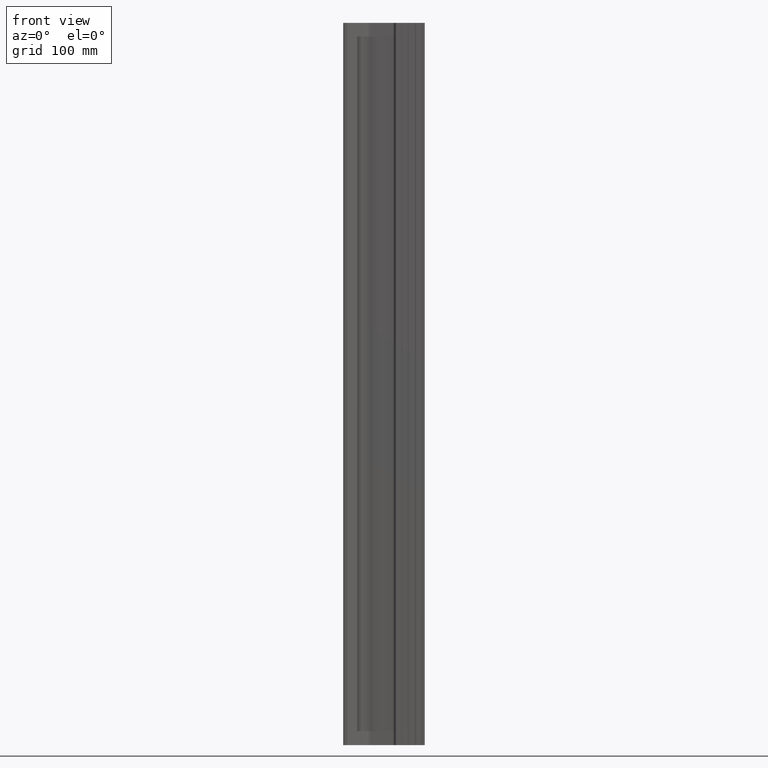
[diagram: clean part render]
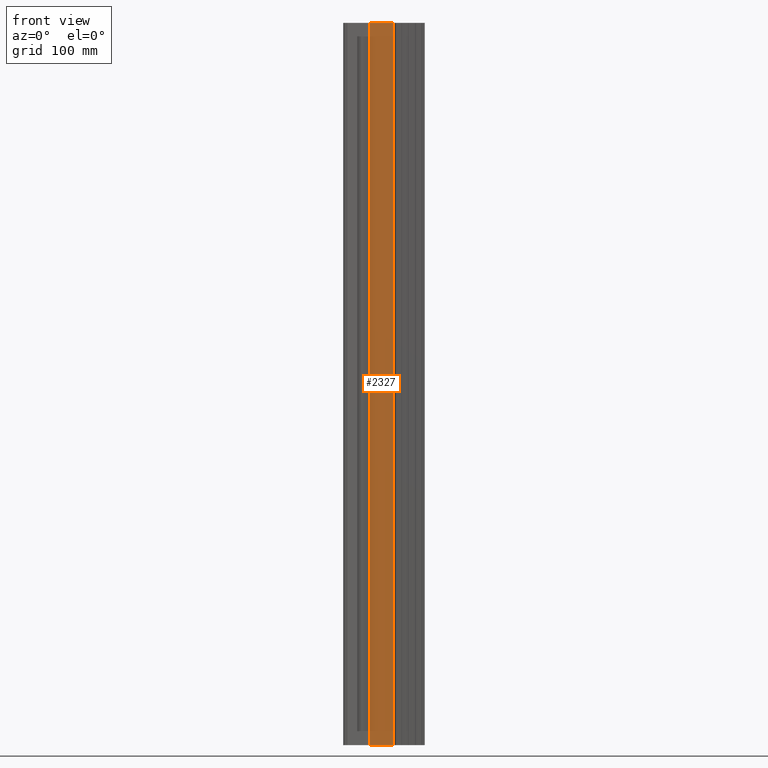
[diagram: same view with one face highlighted and labeled with its STEP entity id]
A machine part, front view. The second image highlights one B-rep face of the part: STEP entity #2327.
In plain terms, the highlighted planar face has unit normal (0, 1, 0).
Its self-contained STEP definition (entity closure, byte-faithful):
#49 = CARTESIAN_POINT ( 'NONE',  ( 69.17157287525377300, -3.000000000000000000, -500.0000000000000000 ) ) ;
#57 = VERTEX_POINT ( 'NONE', #168 ) ;
#147 = EDGE_CURVE ( 'NONE', #57, #1682, #1797, .T. ) ;
#166 = CARTESIAN_POINT ( 'NONE',  ( 36.89949493661166000, -3.000000000000000000, 500.0000000000000000 ) ) ;
#168 = CARTESIAN_POINT ( 'NONE',  ( 36.89949493661166000, -2.999999999999997300, -500.0000000000000000 ) ) ;
#201 = AXIS2_PLACEMENT_3D ( 'NONE', #166, #1596, #375 ) ;
#282 = LINE ( 'NONE', #1267, #1209 ) ;
#375 = DIRECTION ( 'NONE',  ( 0.0000000000000000000, -0.0000000000000000000, 1.000000000000000000 ) ) ;
#386 = VERTEX_POINT ( 'NONE', #2040 ) ;
#390 = CARTESIAN_POINT ( 'NONE',  ( 36.89949493661166000, -3.000000000000000000, -500.0000000000000000 ) ) ;
#439 = ORIENTED_EDGE ( 'NONE', *, *, #1985, .F. ) ;
#574 = DIRECTION ( 'NONE',  ( 1.000000000000000000, 0.0000000000000000000, 0.0000000000000000000 ) ) ;
#611 = EDGE_CURVE ( 'NONE', #999, #57, #282, .T. ) ;
#913 = VECTOR ( 'NONE', #2445, 1000.000000000000000 ) ;
#977 = LINE ( 'NONE', #2058, #2470 ) ;
#999 = VERTEX_POINT ( 'NONE', #2169 ) ;
#1209 = VECTOR ( 'NONE', #1486, 1000.000000000000000 ) ;
#1222 = FACE_OUTER_BOUND ( 'NONE', #1480, .T. ) ;
#1235 = VECTOR ( 'NONE', #574, 1000.000000000000000 ) ;
#1267 = CARTESIAN_POINT ( 'NONE',  ( 36.89949493661166000, -2.999999999999997300, 500.0000000000000000 ) ) ;
#1432 = CARTESIAN_POINT ( 'NONE',  ( 69.17157287525377300, -3.000000000000000000, 500.0000000000000000 ) ) ;
#1480 = EDGE_LOOP ( 'NONE', ( #1867, #439, #1707, #1881 ) ) ;
#1486 = DIRECTION ( 'NONE',  ( -0.0000000000000000000, -0.0000000000000000000, -1.000000000000000000 ) ) ;
#1596 = DIRECTION ( 'NONE',  ( 0.0000000000000000000, 1.000000000000000000, 0.0000000000000000000 ) ) ;
#1661 = DIRECTION ( 'NONE',  ( 1.000000000000000000, 0.0000000000000000000, 0.0000000000000000000 ) ) ;
#1682 = VERTEX_POINT ( 'NONE', #49 ) ;
#1707 = ORIENTED_EDGE ( 'NONE', *, *, #2000, .F. ) ;
#1797 = LINE ( 'NONE', #390, #1235 ) ;
#1867 = ORIENTED_EDGE ( 'NONE', *, *, #147, .T. ) ;
#1881 = ORIENTED_EDGE ( 'NONE', *, *, #611, .T. ) ;
#1985 = EDGE_CURVE ( 'NONE', #386, #1682, #2132, .T. ) ;
#2000 = EDGE_CURVE ( 'NONE', #999, #386, #977, .T. ) ;
#2040 = CARTESIAN_POINT ( 'NONE',  ( 69.17157287525377300, -3.000000000000000000, 500.0000000000000000 ) ) ;
#2058 = CARTESIAN_POINT ( 'NONE',  ( 36.89949493661166000, -3.000000000000000000, 500.0000000000000000 ) ) ;
#2132 = LINE ( 'NONE', #1432, #913 ) ;
#2169 = CARTESIAN_POINT ( 'NONE',  ( 36.89949493661166000, -2.999999999999997300, 500.0000000000000000 ) ) ;
#2327 = ADVANCED_FACE ( 'NONE', ( #1222 ), #2381, .F. ) ;
#2381 = PLANE ( 'NONE',  #201 ) ;
#2445 = DIRECTION ( 'NONE',  ( -0.0000000000000000000, -0.0000000000000000000, -1.000000000000000000 ) ) ;
#2470 = VECTOR ( 'NONE', #1661, 1000.000000000000000 ) ;